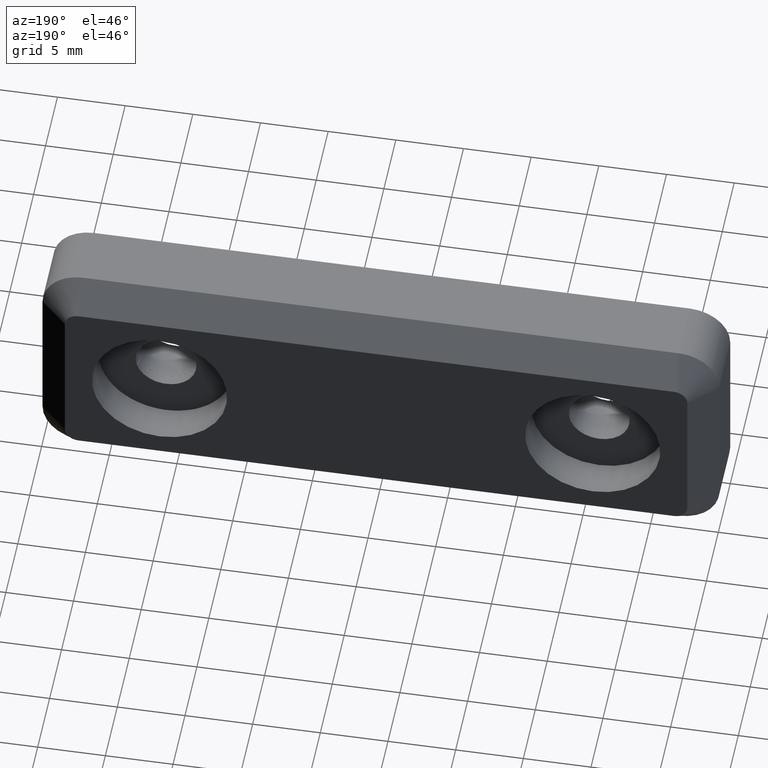
[diagram: clean part render]
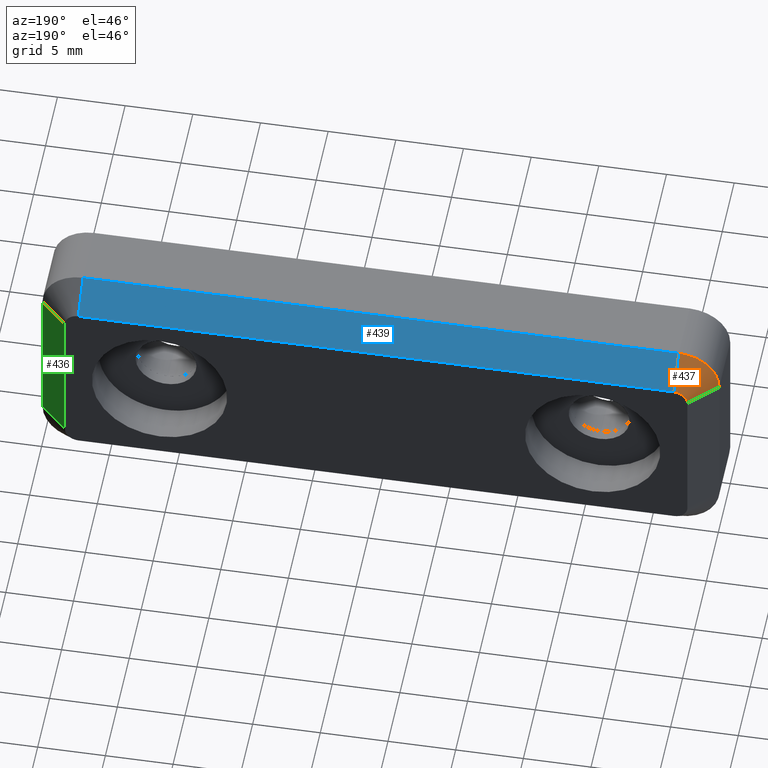
[diagram: same view with three faces highlighted in distinct colors, each labeled with its STEP entity id]
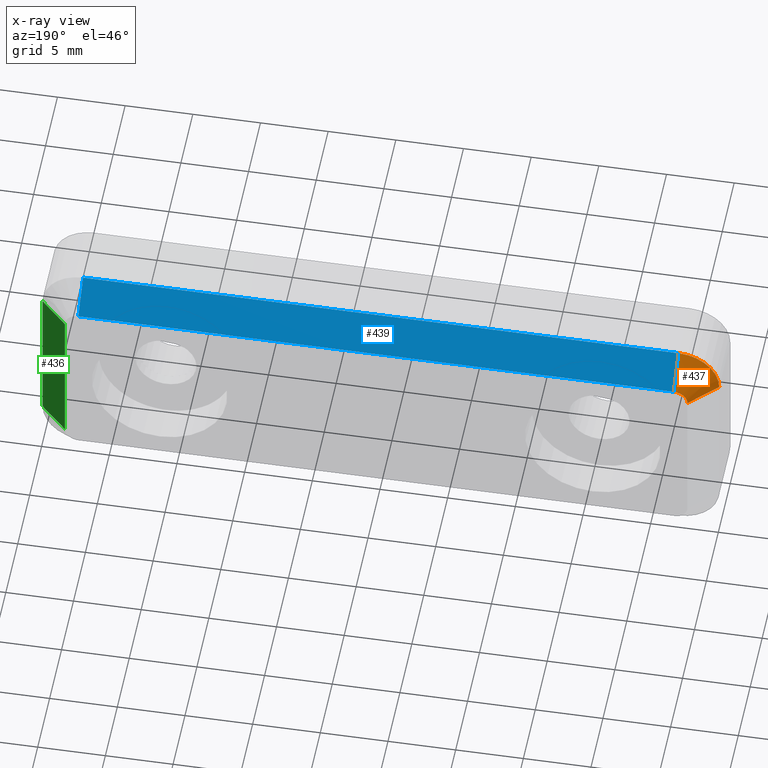
[diagram: x-ray of the same camera — body ghosted, the three highlighted faces saturated]
A machine part, auxiliary view with three faces highlighted in distinct colors.
The next image is the same camera in x-ray (body ghosted, the three faces saturated) — at least one of them is partly hidden behind the body in this view.
Their STEP definitions:

[orange] entity #437 — the highlighted conical surface has half-angle 45 deg.
#36=CONICAL_SURFACE('',#488,0.999999999999998,0.785398163397447);
#81=FACE_OUTER_BOUND('',#117,.T.);
#117=EDGE_LOOP('',(#380,#381,#382,#383));
#138=CIRCLE('',#457,0.999999999999998);
#150=CIRCLE('',#480,3.);
#180=LINE('',#745,#208);
#182=LINE('',#749,#210);
#208=VECTOR('',#608,2.8284271247462);
#210=VECTOR('',#614,2.8284271247462);
#222=VERTEX_POINT('',#673);
#223=VERTEX_POINT('',#674);
#236=VERTEX_POINT('',#706);
#239=VERTEX_POINT('',#714);
#258=EDGE_CURVE('',#222,#223,#138,.T.);
#286=EDGE_CURVE('',#239,#236,#150,.T.);
#292=EDGE_CURVE('',#222,#236,#180,.T.);
#294=EDGE_CURVE('',#223,#239,#182,.T.);
#380=ORIENTED_EDGE('',*,*,#292,.T.);
#381=ORIENTED_EDGE('',*,*,#286,.F.);
#382=ORIENTED_EDGE('',*,*,#294,.F.);
#383=ORIENTED_EDGE('',*,*,#258,.F.);
#437=ADVANCED_FACE('',(#81),#36,.T.);
#457=AXIS2_PLACEMENT_3D('',#675,#528,#529);
#480=AXIS2_PLACEMENT_3D('',#734,#590,#591);
#488=AXIS2_PLACEMENT_3D('',#748,#612,#613);
#528=DIRECTION('center_axis',(0.,1.,0.));
#529=DIRECTION('ref_axis',(0.,0.,1.));
#590=DIRECTION('center_axis',(0.,-1.,0.));
#591=DIRECTION('ref_axis',(-1.15648231731787E-15,0.,1.));
#608=DIRECTION('',(0.707106781186546,-0.707106781186549,-3.06658683336674E-16));
#612=DIRECTION('center_axis',(0.,-1.,0.));
#613=DIRECTION('ref_axis',(0.,0.,-1.));
#614=DIRECTION('',(0.,-0.707106781186549,-0.707106781186546));
#673=CARTESIAN_POINT('',(23.,6.6,-5.5));
#674=CARTESIAN_POINT('',(22.,6.6,-6.5));
#675=CARTESIAN_POINT('Origin',(22.,6.6,-5.5));
#706=CARTESIAN_POINT('',(25.,4.59999999999999,-5.5));
#714=CARTESIAN_POINT('',(22.,4.59999999999999,-8.5));
#734=CARTESIAN_POINT('Origin',(22.,4.59999999999999,-5.5));
#745=CARTESIAN_POINT('',(23.,6.6,-5.5));
#748=CARTESIAN_POINT('Origin',(22.,6.6,-5.5));
#749=CARTESIAN_POINT('',(22.,6.6,-6.5));

[blue] entity #439 — the highlighted planar face has unit normal (0, 0.7071, 0.7071).
#83=FACE_OUTER_BOUND('',#119,.T.);
#119=EDGE_LOOP('',(#388,#389,#390,#391));
#160=LINE('',#677,#188);
#168=LINE('',#715,#196);
#182=LINE('',#749,#210);
#183=LINE('',#751,#211);
#188=VECTOR('',#530,44.);
#196=VECTOR('',#568,44.);
#210=VECTOR('',#614,2.8284271247462);
#211=VECTOR('',#617,2.8284271247462);
#223=VERTEX_POINT('',#674);
#224=VERTEX_POINT('',#676);
#238=VERTEX_POINT('',#712);
#239=VERTEX_POINT('',#714);
#259=EDGE_CURVE('',#223,#224,#160,.T.);
#276=EDGE_CURVE('',#238,#239,#168,.T.);
#294=EDGE_CURVE('',#223,#239,#182,.T.);
#295=EDGE_CURVE('',#238,#224,#183,.T.);
#388=ORIENTED_EDGE('',*,*,#294,.T.);
#389=ORIENTED_EDGE('',*,*,#276,.F.);
#390=ORIENTED_EDGE('',*,*,#295,.T.);
#391=ORIENTED_EDGE('',*,*,#259,.F.);
#413=PLANE('',#490);
#439=ADVANCED_FACE('',(#83),#413,.T.);
#490=AXIS2_PLACEMENT_3D('',#752,#618,#619);
#530=DIRECTION('',(-1.,0.,0.));
#568=DIRECTION('',(1.,0.,0.));
#614=DIRECTION('',(0.,-0.707106781186549,-0.707106781186546));
#617=DIRECTION('',(0.,0.707106781186549,0.707106781186546));
#618=DIRECTION('center_axis',(0.,0.707106781186546,-0.707106781186549));
#619=DIRECTION('ref_axis',(1.,0.,0.));
#674=CARTESIAN_POINT('',(22.,6.6,-6.5));
#676=CARTESIAN_POINT('',(-22.,6.6,-6.5));
#677=CARTESIAN_POINT('',(-22.,6.6,-6.5));
#712=CARTESIAN_POINT('',(-22.,4.59999999999999,-8.5));
#714=CARTESIAN_POINT('',(22.,4.59999999999999,-8.5));
#715=CARTESIAN_POINT('',(22.,4.59999999999999,-8.5));
#749=CARTESIAN_POINT('',(22.,6.6,-6.5));
#751=CARTESIAN_POINT('',(-22.,4.59999999999999,-8.5));
#752=CARTESIAN_POINT('Origin',(0.,6.6,-6.5));

[green] entity #436 — the highlighted planar face has unit normal (0.7071, 0.7071, -0).
#80=FACE_OUTER_BOUND('',#116,.T.);
#116=EDGE_LOOP('',(#376,#377,#378,#379));
#161=LINE('',#681,#189);
#171=LINE('',#721,#199);
#179=LINE('',#743,#207);
#181=LINE('',#747,#209);
#189=VECTOR('',#533,11.);
#199=VECTOR('',#573,11.);
#207=VECTOR('',#605,2.8284271247462);
#209=VECTOR('',#611,2.8284271247462);
#225=VERTEX_POINT('',#678);
#226=VERTEX_POINT('',#680);
#240=VERTEX_POINT('',#718);
#241=VERTEX_POINT('',#720);
#261=EDGE_CURVE('',#225,#226,#161,.T.);
#279=EDGE_CURVE('',#240,#241,#171,.T.);
#291=EDGE_CURVE('',#240,#226,#179,.T.);
#293=EDGE_CURVE('',#241,#225,#181,.T.);
#376=ORIENTED_EDGE('',*,*,#291,.T.);
#377=ORIENTED_EDGE('',*,*,#261,.F.);
#378=ORIENTED_EDGE('',*,*,#293,.F.);
#379=ORIENTED_EDGE('',*,*,#279,.F.);
#412=PLANE('',#487);
#436=ADVANCED_FACE('',(#80),#412,.T.);
#487=AXIS2_PLACEMENT_3D('',#746,#609,#610);
#533=DIRECTION('',(2.04085114820801E-16,0.,1.));
#573=DIRECTION('',(-2.04085114820801E-16,0.,-1.));
#605=DIRECTION('',(0.707106781186546,0.707106781186549,0.));
#609=DIRECTION('center_axis',(-0.707106781186549,0.707106781186546,1.44309968629024E-16));
#610=DIRECTION('ref_axis',(0.,0.,-1.));
#611=DIRECTION('',(0.707106781186546,0.707106781186549,-3.06658683336674E-16));
#678=CARTESIAN_POINT('',(-23.,6.6,-5.5));
#680=CARTESIAN_POINT('',(-23.,6.6,5.5));
#681=CARTESIAN_POINT('',(-23.,6.6,5.5));
#718=CARTESIAN_POINT('',(-25.,4.59999999999999,5.5));
#720=CARTESIAN_POINT('',(-25.,4.59999999999999,-5.5));
#721=CARTESIAN_POINT('',(-25.,4.59999999999999,-5.5));
#743=CARTESIAN_POINT('',(-25.,4.59999999999999,5.5));
#746=CARTESIAN_POINT('Origin',(-23.,6.6,4.69395764087842E-15));
#747=CARTESIAN_POINT('',(-25.,4.59999999999999,-5.5));